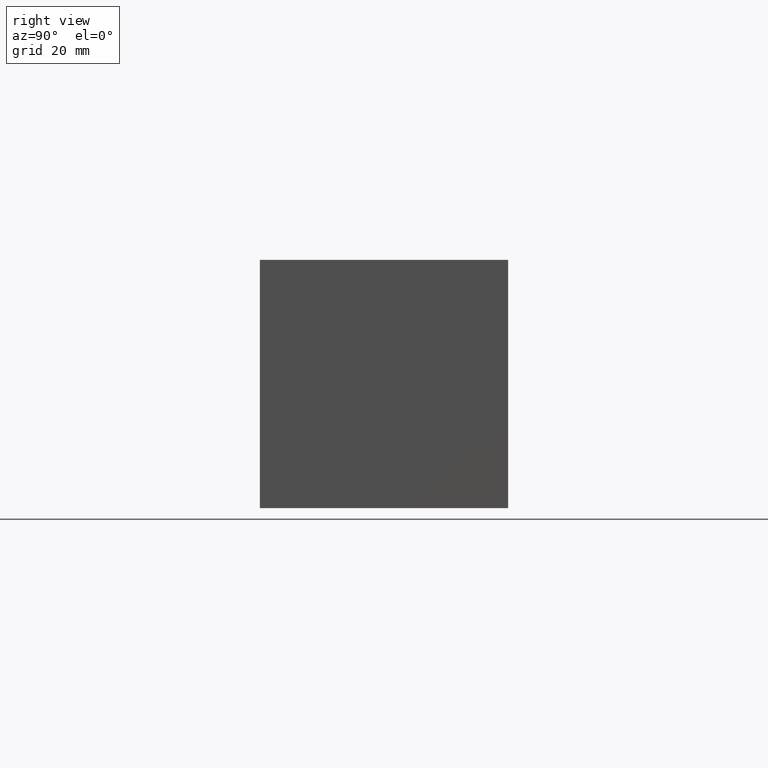
[diagram: clean part render]
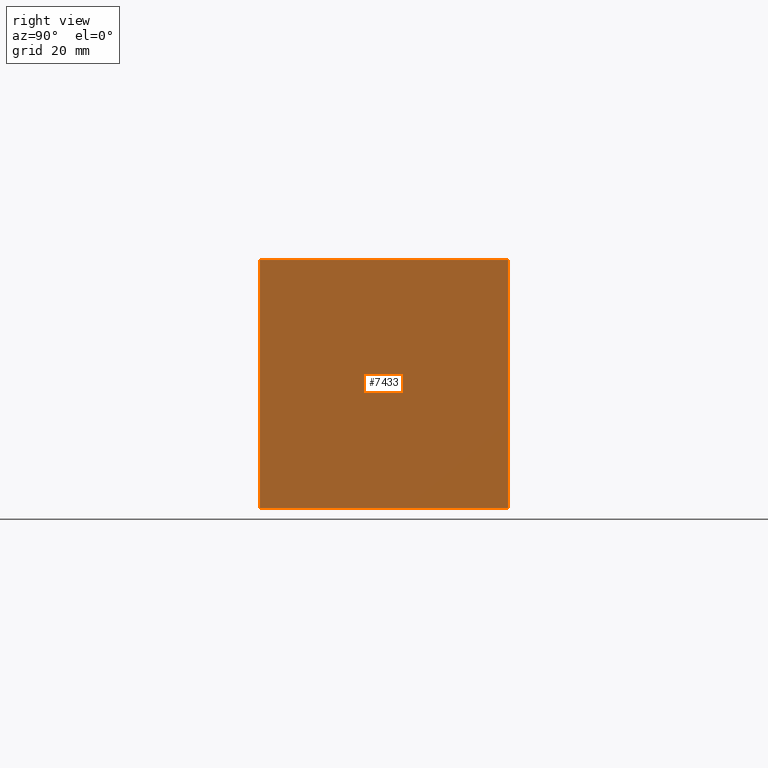
[diagram: same view with one face highlighted and labeled with its STEP entity id]
A machine part, right view. The second image highlights one B-rep face of the part: STEP entity #7433.
In plain terms, the highlighted planar face has unit normal (1, 0, 0).
Its self-contained STEP definition (entity closure, byte-faithful):
#906=FACE_OUTER_BOUND('',#1327,.T.);
#1327=EDGE_LOOP('',(#6503,#6504,#6505,#6506));
#1611=LINE('',#11502,#2326);
#2048=LINE('',#12739,#2763);
#2049=LINE('',#12742,#2764);
#2050=LINE('',#12743,#2765);
#2326=VECTOR('',#8247,10.);
#2763=VECTOR('',#9296,10.);
#2764=VECTOR('',#9299,10.);
#2765=VECTOR('',#9300,10.);
#3078=VERTEX_POINT('',#11499);
#3079=VERTEX_POINT('',#11501);
#3445=VERTEX_POINT('',#12737);
#3446=VERTEX_POINT('',#12741);
#3913=EDGE_CURVE('',#3078,#3079,#1611,.T.);
#4470=EDGE_CURVE('',#3445,#3079,#2048,.T.);
#4471=EDGE_CURVE('',#3446,#3445,#2049,.T.);
#4472=EDGE_CURVE('',#3446,#3078,#2050,.T.);
#6503=ORIENTED_EDGE('',*,*,#4471,.T.);
#6504=ORIENTED_EDGE('',*,*,#4470,.T.);
#6505=ORIENTED_EDGE('',*,*,#3913,.F.);
#6506=ORIENTED_EDGE('',*,*,#4472,.F.);
#6747=PLANE('',#7827);
#7433=ADVANCED_FACE('',(#906),#6747,.T.);
#7827=AXIS2_PLACEMENT_3D('',#12740,#9297,#9298);
#8247=DIRECTION('',(0.,1.,0.));
#9296=DIRECTION('',(0.,0.,1.));
#9297=DIRECTION('center_axis',(1.,0.,0.));
#9298=DIRECTION('ref_axis',(0.,1.,0.));
#9299=DIRECTION('',(0.,1.,0.));
#9300=DIRECTION('',(0.,0.,1.));
#11499=CARTESIAN_POINT('',(196.85,0.,76.2));
#11501=CARTESIAN_POINT('',(196.85,76.2,76.2));
#11502=CARTESIAN_POINT('',(196.85,0.,76.2));
#12737=CARTESIAN_POINT('',(196.85,76.2,0.));
#12739=CARTESIAN_POINT('',(196.85,76.2,0.));
#12740=CARTESIAN_POINT('Origin',(196.85,0.,0.));
#12741=CARTESIAN_POINT('',(196.85,0.,0.));
#12742=CARTESIAN_POINT('',(196.85,0.,0.));
#12743=CARTESIAN_POINT('',(196.85,0.,0.));